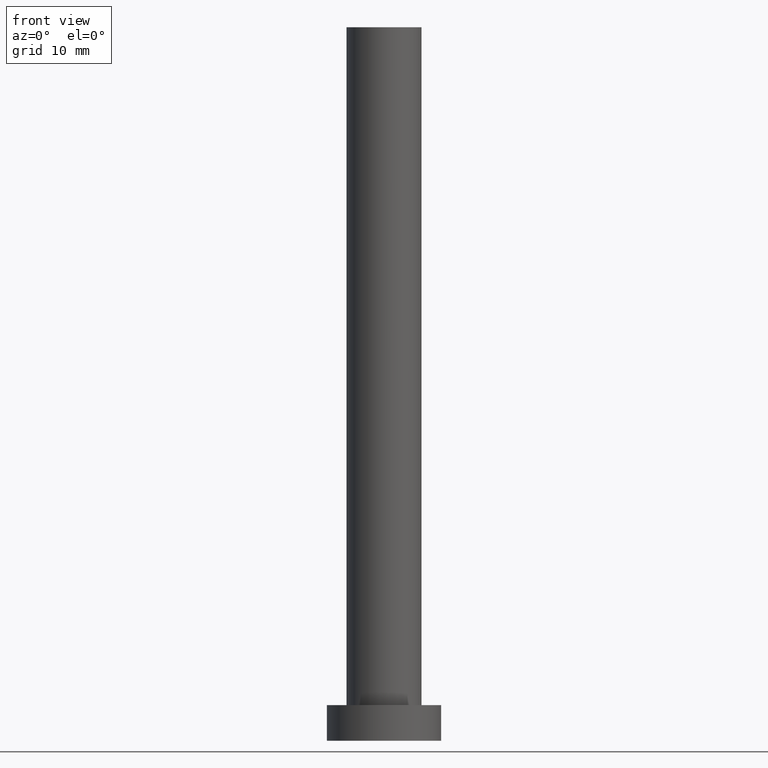
[diagram: clean part render]
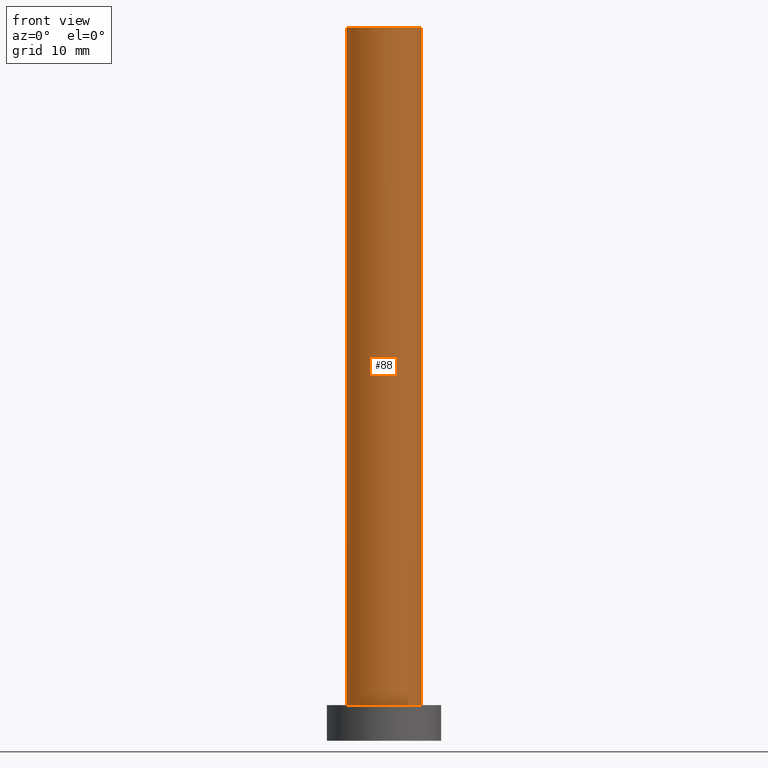
[diagram: same view with one face highlighted and labeled with its STEP entity id]
A machine part, front view. The second image highlights one B-rep face of the part: STEP entity #88.
In plain terms, the highlighted cylindrical surface (partial cylindrical patch) has radius 5.25 mm, axis along (-0, -0, -1).
Its self-contained STEP definition (entity closure, byte-faithful):
#4 = ORIENTED_EDGE ( 'NONE', *, *, #202, .T. ) ;
#8 = ORIENTED_EDGE ( 'NONE', *, *, #188, .F. ) ;
#24 = CARTESIAN_POINT ( 'NONE',  ( -5.250000000000000888, 0.000000000000000000, 100.0000000000000000 ) ) ;
#27 = VECTOR ( 'NONE', #236, 1000.000000000000000 ) ;
#29 = ORIENTED_EDGE ( 'NONE', *, *, #49, .T. ) ;
#37 = VERTEX_POINT ( 'NONE', #24 ) ;
#47 = LINE ( 'NONE', #50, #228 ) ;
#49 = EDGE_CURVE ( 'NONE', #238, #175, #68, .T. ) ;
#50 = CARTESIAN_POINT ( 'NONE',  ( 5.250000000000000888, 6.429395695523605139E-16, 100.0000000000000000 ) ) ;
#54 = DIRECTION ( 'NONE',  ( 0.000000000000000000, 0.000000000000000000, 1.000000000000000000 ) ) ;
#59 = AXIS2_PLACEMENT_3D ( 'NONE', #143, #82, #145 ) ;
#68 = CIRCLE ( 'NONE', #59, 5.250000000000000888 ) ;
#72 = CIRCLE ( 'NONE', #224, 5.250000000000000888 ) ;
#74 = CARTESIAN_POINT ( 'NONE',  ( 5.250000000000000888, 6.429395695523605139E-16, 100.0000000000000000 ) ) ;
#82 = DIRECTION ( 'NONE',  ( 0.000000000000000000, 0.000000000000000000, 1.000000000000000000 ) ) ;
#86 = DIRECTION ( 'NONE',  ( -0.000000000000000000, -0.000000000000000000, -1.000000000000000000 ) ) ;
#87 = DIRECTION ( 'NONE',  ( -0.000000000000000000, -0.000000000000000000, -1.000000000000000000 ) ) ;
#88 = ADVANCED_FACE ( 'NONE', ( #189 ), #101, .T. ) ;
#101 = CYLINDRICAL_SURFACE ( 'NONE', #241, 5.250000000000000888 ) ;
#119 = ORIENTED_EDGE ( 'NONE', *, *, #120, .F. ) ;
#120 = EDGE_CURVE ( 'NONE', #37, #157, #72, .T. ) ;
#121 = CARTESIAN_POINT ( 'NONE',  ( 0.000000000000000000, 0.000000000000000000, 100.0000000000000000 ) ) ;
#140 = CARTESIAN_POINT ( 'NONE',  ( -5.250000000000000888, 0.000000000000000000, 100.0000000000000000 ) ) ;
#143 = CARTESIAN_POINT ( 'NONE',  ( 0.000000000000000000, 0.000000000000000000, 5.000000000000000000 ) ) ;
#145 = DIRECTION ( 'NONE',  ( 1.000000000000000000, 0.000000000000000000, 0.000000000000000000 ) ) ;
#146 = DIRECTION ( 'NONE',  ( -1.000000000000000000, 0.000000000000000000, 0.000000000000000000 ) ) ;
#153 = CARTESIAN_POINT ( 'NONE',  ( 0.000000000000000000, 0.000000000000000000, 100.0000000000000000 ) ) ;
#156 = DIRECTION ( 'NONE',  ( 1.000000000000000000, 0.000000000000000000, 0.000000000000000000 ) ) ;
#157 = VERTEX_POINT ( 'NONE', #74 ) ;
#159 = CARTESIAN_POINT ( 'NONE',  ( -5.250000000000000888, 0.000000000000000000, 5.000000000000000000 ) ) ;
#175 = VERTEX_POINT ( 'NONE', #234 ) ;
#181 = LINE ( 'NONE', #140, #27 ) ;
#188 = EDGE_CURVE ( 'NONE', #157, #175, #47, .T. ) ;
#189 = FACE_OUTER_BOUND ( 'NONE', #253, .T. ) ;
#202 = EDGE_CURVE ( 'NONE', #37, #238, #181, .T. ) ;
#224 = AXIS2_PLACEMENT_3D ( 'NONE', #153, #54, #156 ) ;
#228 = VECTOR ( 'NONE', #87, 1000.000000000000000 ) ;
#234 = CARTESIAN_POINT ( 'NONE',  ( 5.250000000000000888, 6.429395695523605139E-16, 5.000000000000000000 ) ) ;
#236 = DIRECTION ( 'NONE',  ( -0.000000000000000000, -0.000000000000000000, -1.000000000000000000 ) ) ;
#238 = VERTEX_POINT ( 'NONE', #159 ) ;
#241 = AXIS2_PLACEMENT_3D ( 'NONE', #121, #86, #146 ) ;
#253 = EDGE_LOOP ( 'NONE', ( #8, #119, #4, #29 ) ) ;